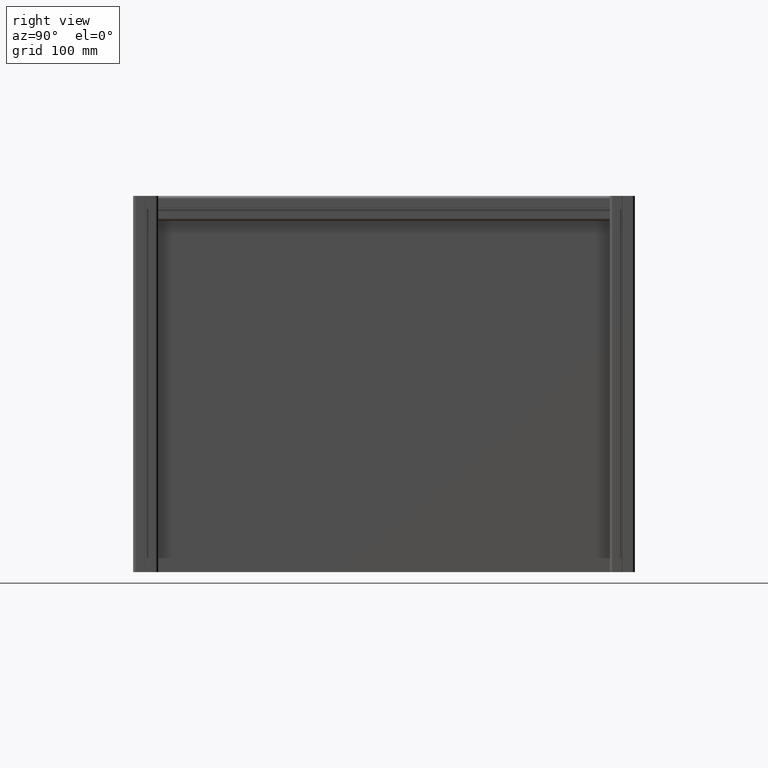
[diagram: clean part render]
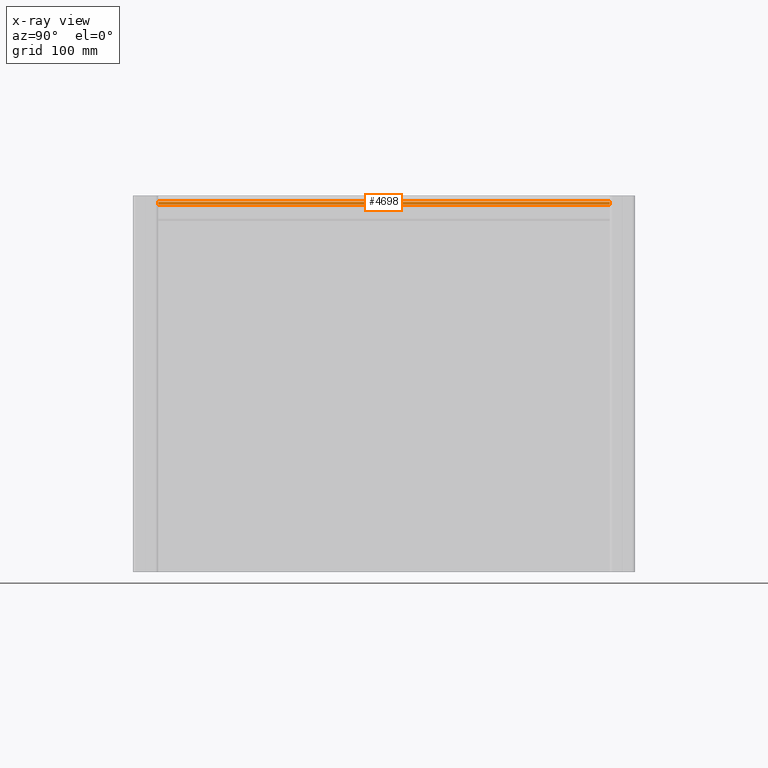
[diagram: x-ray — body ghosted, one internal face saturated and labeled with its STEP entity id]
A machine part, right view, then the same camera in x-ray: the body is ghosted and one INTERNAL B-rep face — a face not visible from any outside direction — is saturated and labeled: STEP entity #4698.
In plain terms, the highlighted planar face has unit normal (0.7071, -0, 0.7071).
Its self-contained STEP definition (entity closure, byte-faithful):
#699 = ORIENTED_EDGE ( 'NONE', *, *, #762, .F. ) ;
#762 = EDGE_CURVE ( 'NONE', #7585, #14316, #3749, .T. ) ;
#874 = VERTEX_POINT ( 'NONE', #14989 ) ;
#1777 = PLANE ( 'NONE',  #8842 ) ;
#1854 = DIRECTION ( 'NONE',  ( 0.7071067811865474617, 0.7071067811865475727, -0.0000000000000000000 ) ) ;
#2275 = CARTESIAN_POINT ( 'NONE',  ( 5.902943725151999388, -7.600000000000365574, 0.0000000000000000000 ) ) ;
#2736 = VECTOR ( 'NONE', #8432, 1000.000000000000000 ) ;
#3235 = DIRECTION ( 'NONE',  ( -0.7071067811865475727, 0.7071067811865474617, 0.0000000000000000000 ) ) ;
#3563 = CARTESIAN_POINT ( 'NONE',  ( 5.902943725151999388, -7.600000000000365574, 720.0000000000000000 ) ) ;
#3577 = LINE ( 'NONE', #2275, #2736 ) ;
#3749 = LINE ( 'NONE', #8512, #8778 ) ;
#4511 = CARTESIAN_POINT ( 'NONE',  ( 5.902943725151998500, -7.600000000000363798, 720.0000000000000000 ) ) ;
#4659 = CARTESIAN_POINT ( 'NONE',  ( 10.29999999999927240, -11.99705627484763681, 720.0000000000000000 ) ) ;
#4698 = ADVANCED_FACE ( 'NONE', ( #13102 ), #1777, .F. ) ;
#4964 = ORIENTED_EDGE ( 'NONE', *, *, #9033, .F. ) ;
#5319 = EDGE_CURVE ( 'NONE', #874, #14316, #7875, .T. ) ;
#5637 = EDGE_CURVE ( 'NONE', #10043, #874, #3577, .T. ) ;
#6579 = DIRECTION ( 'NONE',  ( 0.0000000000000000000, -0.0000000000000000000, 1.000000000000000000 ) ) ;
#6646 = CARTESIAN_POINT ( 'NONE',  ( 5.902943725151999388, -7.600000000000365574, 0.0000000000000000000 ) ) ;
#6709 = CARTESIAN_POINT ( 'NONE',  ( 5.902943725151999388, -7.600000000000365574, 720.0000000000000000 ) ) ;
#6964 = DIRECTION ( 'NONE',  ( 0.0000000000000000000, 0.0000000000000000000, 1.000000000000000000 ) ) ;
#7585 = VERTEX_POINT ( 'NONE', #4511 ) ;
#7875 = LINE ( 'NONE', #12813, #13332 ) ;
#8432 = DIRECTION ( 'NONE',  ( 0.7071067811865475727, -0.7071067811865474617, -0.0000000000000000000 ) ) ;
#8512 = CARTESIAN_POINT ( 'NONE',  ( 5.902943725151998500, -7.600000000000363798, 720.0000000000000000 ) ) ;
#8778 = VECTOR ( 'NONE', #12159, 1000.000000000000114 ) ;
#8842 = AXIS2_PLACEMENT_3D ( 'NONE', #6709, #1854, #3235 ) ;
#9033 = EDGE_CURVE ( 'NONE', #10043, #7585, #13183, .T. ) ;
#9640 = VECTOR ( 'NONE', #6964, 1000.000000000000000 ) ;
#10043 = VERTEX_POINT ( 'NONE', #6646 ) ;
#12159 = DIRECTION ( 'NONE',  ( 0.7071067811865474617, -0.7071067811865474617, 0.0000000000000000000 ) ) ;
#12196 = ORIENTED_EDGE ( 'NONE', *, *, #5319, .T. ) ;
#12813 = CARTESIAN_POINT ( 'NONE',  ( 10.29999999999927240, -11.99705627484763681, 720.0000000000000000 ) ) ;
#13102 = FACE_OUTER_BOUND ( 'NONE', #14577, .T. ) ;
#13115 = ORIENTED_EDGE ( 'NONE', *, *, #5637, .T. ) ;
#13183 = LINE ( 'NONE', #3563, #9640 ) ;
#13332 = VECTOR ( 'NONE', #6579, 1000.000000000000000 ) ;
#14316 = VERTEX_POINT ( 'NONE', #4659 ) ;
#14577 = EDGE_LOOP ( 'NONE', ( #699, #4964, #13115, #12196 ) ) ;
#14989 = CARTESIAN_POINT ( 'NONE',  ( 10.29999999999927240, -11.99705627484763681, 0.0000000000000000000 ) ) ;